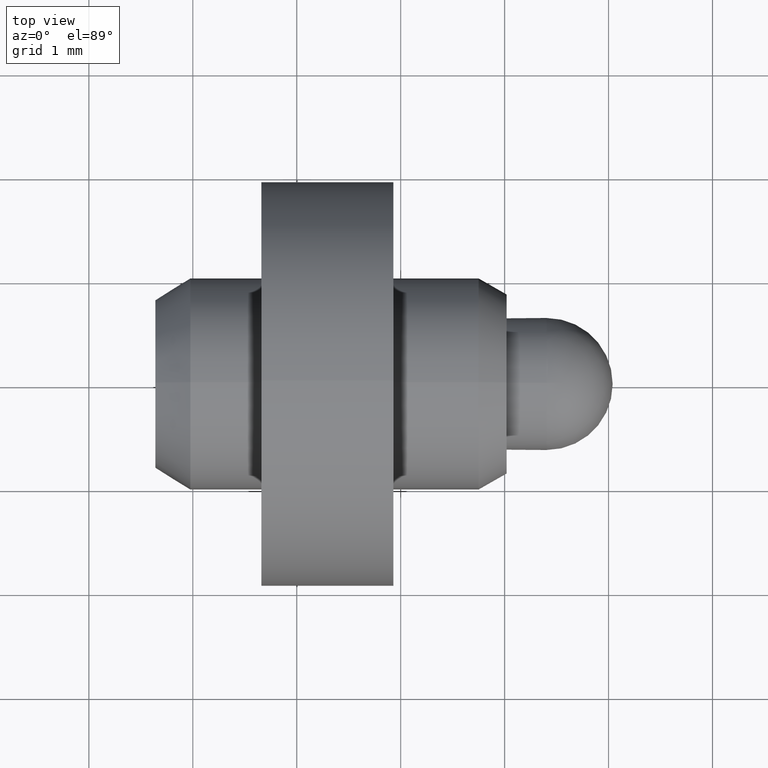
[diagram: clean part render]
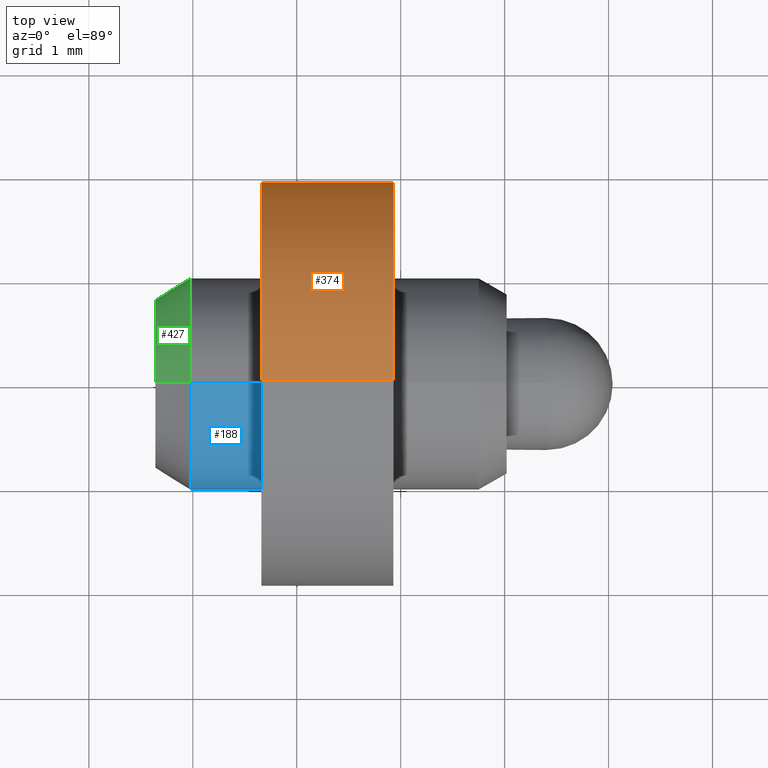
[diagram: same view with three faces highlighted in distinct colors, each labeled with its STEP entity id]
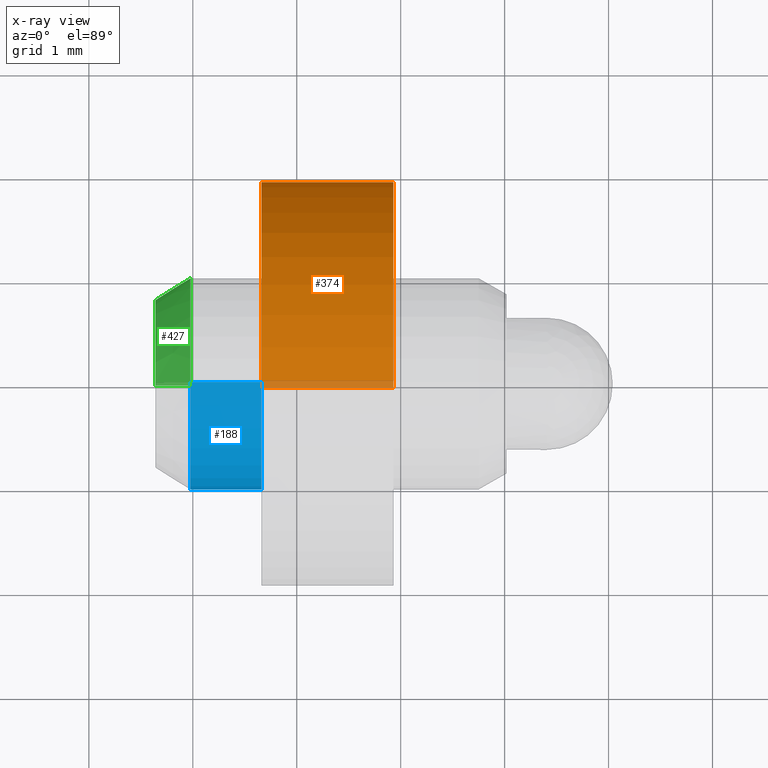
[diagram: x-ray of the same camera — body ghosted, the three highlighted faces saturated]
A machine part, top view with three faces highlighted in distinct colors.
The next image is the same camera in x-ray (body ghosted, the three faces saturated) — at least one of them is partly hidden behind the body in this view.
Their STEP definitions:

[orange] entity #374 — the highlighted cylindrical surface (partial cylindrical patch) has radius 1.945 mm, axis along (-1, -0, -0).
#2 = VECTOR ( 'NONE', #39, 1000.000000000000000 ) ;
#38 = ORIENTED_EDGE ( 'NONE', *, *, #442, .F. ) ;
#39 = DIRECTION ( 'NONE',  ( -1.000000000000000000, -0.0000000000000000000, -0.0000000000000000000 ) ) ;
#72 = CARTESIAN_POINT ( 'NONE',  ( -0.07049936205278306600, 0.0000000000000000000, 0.0000000000000000000 ) ) ;
#73 = AXIS2_PLACEMENT_3D ( 'NONE', #85, #168, #434 ) ;
#76 = CARTESIAN_POINT ( 'NONE',  ( -0.07049936205278306600, 2.381938024341601800E-016, -1.944999999999999800 ) ) ;
#85 = CARTESIAN_POINT ( 'NONE',  ( -2.360499362052783200, 0.0000000000000000000, 0.0000000000000000000 ) ) ;
#111 = ORIENTED_EDGE ( 'NONE', *, *, #212, .T. ) ;
#125 = VERTEX_POINT ( 'NONE', #384 ) ;
#131 = EDGE_CURVE ( 'NONE', #125, #276, #495, .T. ) ;
#140 = ORIENTED_EDGE ( 'NONE', *, *, #131, .T. ) ;
#155 = CARTESIAN_POINT ( 'NONE',  ( -2.360499362052783200, 0.0000000000000000000, 1.944999999999999800 ) ) ;
#162 = EDGE_CURVE ( 'NONE', #125, #332, #288, .T. ) ;
#163 = CARTESIAN_POINT ( 'NONE',  ( -1.340499362052783000, 0.0000000000000000000, 1.944999999999999800 ) ) ;
#168 = DIRECTION ( 'NONE',  ( -1.000000000000000000, -0.0000000000000000000, -0.0000000000000000000 ) ) ;
#176 = ORIENTED_EDGE ( 'NONE', *, *, #162, .F. ) ;
#195 = VERTEX_POINT ( 'NONE', #444 ) ;
#196 = DIRECTION ( 'NONE',  ( 0.0000000000000000000, 0.0000000000000000000, 1.000000000000000000 ) ) ;
#212 = EDGE_CURVE ( 'NONE', #276, #195, #279, .T. ) ;
#227 = DIRECTION ( 'NONE',  ( -1.000000000000000000, -0.0000000000000000000, -0.0000000000000000000 ) ) ;
#237 = DIRECTION ( 'NONE',  ( -1.000000000000000000, -0.0000000000000000000, -0.0000000000000000000 ) ) ;
#270 = FACE_OUTER_BOUND ( 'NONE', #510, .T. ) ;
#276 = VERTEX_POINT ( 'NONE', #76 ) ;
#279 = LINE ( 'NONE', #441, #301 ) ;
#288 = LINE ( 'NONE', #155, #2 ) ;
#301 = VECTOR ( 'NONE', #309, 1000.000000000000000 ) ;
#309 = DIRECTION ( 'NONE',  ( -1.000000000000000000, -0.0000000000000000000, -0.0000000000000000000 ) ) ;
#312 = CYLINDRICAL_SURFACE ( 'NONE', #73, 1.944999999999999800 ) ;
#325 = AXIS2_PLACEMENT_3D ( 'NONE', #387, #227, #383 ) ;
#332 = VERTEX_POINT ( 'NONE', #163 ) ;
#339 = AXIS2_PLACEMENT_3D ( 'NONE', #72, #237, #196 ) ;
#351 = CIRCLE ( 'NONE', #325, 1.944999999999999800 ) ;
#374 = ADVANCED_FACE ( 'NONE', ( #270 ), #312, .T. ) ;
#383 = DIRECTION ( 'NONE',  ( 0.0000000000000000000, 0.0000000000000000000, 1.000000000000000000 ) ) ;
#384 = CARTESIAN_POINT ( 'NONE',  ( -0.07049936205278306600, 0.0000000000000000000, 1.944999999999999800 ) ) ;
#387 = CARTESIAN_POINT ( 'NONE',  ( -1.340499362052783000, 0.0000000000000000000, 0.0000000000000000000 ) ) ;
#434 = DIRECTION ( 'NONE',  ( 0.0000000000000000000, 0.0000000000000000000, 1.000000000000000000 ) ) ;
#441 = CARTESIAN_POINT ( 'NONE',  ( -2.360499362052783200, 2.381938024341601800E-016, -1.944999999999999800 ) ) ;
#442 = EDGE_CURVE ( 'NONE', #332, #195, #351, .T. ) ;
#444 = CARTESIAN_POINT ( 'NONE',  ( -1.340499362052783000, 2.381938024341601800E-016, -1.944999999999999800 ) ) ;
#495 = CIRCLE ( 'NONE', #339, 1.944999999999999800 ) ;
#510 = EDGE_LOOP ( 'NONE', ( #140, #111, #38, #176 ) ) ;

[blue] entity #188 — the highlighted cylindrical surface (partial cylindrical patch) has radius 1.015 mm, axis along (-1, -0, -0).
#3 = DIRECTION ( 'NONE',  ( -1.000000000000000000, -0.0000000000000000000, -0.0000000000000000000 ) ) ;
#23 = DIRECTION ( 'NONE',  ( -1.000000000000000000, -0.0000000000000000000, -0.0000000000000000000 ) ) ;
#62 = CARTESIAN_POINT ( 'NONE',  ( -1.340499362052783000, 0.0000000000000000000, 0.0000000000000000000 ) ) ;
#66 = CYLINDRICAL_SURFACE ( 'NONE', #274, 1.014999999999999900 ) ;
#79 = EDGE_CURVE ( 'NONE', #365, #459, #521, .T. ) ;
#98 = DIRECTION ( 'NONE',  ( 0.0000000000000000000, 0.0000000000000000000, 1.000000000000000000 ) ) ;
#103 = CARTESIAN_POINT ( 'NONE',  ( -2.023764668175233300, 0.0000000000000000000, 1.014999999999999900 ) ) ;
#104 = DIRECTION ( 'NONE',  ( 0.0000000000000000000, 0.0000000000000000000, 1.000000000000000000 ) ) ;
#105 = DIRECTION ( 'NONE',  ( -1.000000000000000000, -0.0000000000000000000, -0.0000000000000000000 ) ) ;
#124 = CARTESIAN_POINT ( 'NONE',  ( -1.340499362052783000, 1.243016501134563300E-016, -1.014999999999999900 ) ) ;
#150 = ORIENTED_EDGE ( 'NONE', *, *, #243, .T. ) ;
#188 = ADVANCED_FACE ( 'NONE', ( #395 ), #66, .T. ) ;
#194 = DIRECTION ( 'NONE',  ( -1.000000000000000000, -0.0000000000000000000, -0.0000000000000000000 ) ) ;
#199 = VECTOR ( 'NONE', #194, 1000.000000000000000 ) ;
#201 = CARTESIAN_POINT ( 'NONE',  ( -1.340499362052783000, 0.0000000000000000000, 1.014999999999999900 ) ) ;
#209 = AXIS2_PLACEMENT_3D ( 'NONE', #62, #23, #98 ) ;
#232 = EDGE_LOOP ( 'NONE', ( #450, #390, #150, #311 ) ) ;
#243 = EDGE_CURVE ( 'NONE', #284, #459, #410, .T. ) ;
#250 = CIRCLE ( 'NONE', #209, 1.014999999999999900 ) ;
#267 = DIRECTION ( 'NONE',  ( -1.000000000000000000, -0.0000000000000000000, -0.0000000000000000000 ) ) ;
#274 = AXIS2_PLACEMENT_3D ( 'NONE', #313, #3, #485 ) ;
#281 = LINE ( 'NONE', #473, #491 ) ;
#284 = VERTEX_POINT ( 'NONE', #201 ) ;
#311 = ORIENTED_EDGE ( 'NONE', *, *, #79, .F. ) ;
#313 = CARTESIAN_POINT ( 'NONE',  ( -2.360499362052783200, 0.0000000000000000000, 0.0000000000000000000 ) ) ;
#318 = AXIS2_PLACEMENT_3D ( 'NONE', #428, #267, #104 ) ;
#340 = VERTEX_POINT ( 'NONE', #124 ) ;
#365 = VERTEX_POINT ( 'NONE', #367 ) ;
#367 = CARTESIAN_POINT ( 'NONE',  ( -2.023764668175233300, 1.243016501134563300E-016, -1.014999999999999900 ) ) ;
#390 = ORIENTED_EDGE ( 'NONE', *, *, #476, .T. ) ;
#393 = CARTESIAN_POINT ( 'NONE',  ( -2.360499362052783200, 0.0000000000000000000, 1.014999999999999900 ) ) ;
#395 = FACE_OUTER_BOUND ( 'NONE', #232, .T. ) ;
#410 = LINE ( 'NONE', #393, #199 ) ;
#428 = CARTESIAN_POINT ( 'NONE',  ( -2.023764668175233300, 0.0000000000000000000, 0.0000000000000000000 ) ) ;
#431 = EDGE_CURVE ( 'NONE', #340, #365, #281, .T. ) ;
#450 = ORIENTED_EDGE ( 'NONE', *, *, #431, .F. ) ;
#459 = VERTEX_POINT ( 'NONE', #103 ) ;
#473 = CARTESIAN_POINT ( 'NONE',  ( -2.360499362052783200, 1.243016501134563300E-016, -1.014999999999999900 ) ) ;
#476 = EDGE_CURVE ( 'NONE', #340, #284, #250, .T. ) ;
#485 = DIRECTION ( 'NONE',  ( 0.0000000000000000000, 0.0000000000000000000, 1.000000000000000000 ) ) ;
#491 = VECTOR ( 'NONE', #105, 1000.000000000000000 ) ;
#521 = CIRCLE ( 'NONE', #318, 1.014999999999999900 ) ;

[green] entity #427 — the highlighted conical surface has half-angle 31.43 deg.
#32 = CARTESIAN_POINT ( 'NONE',  ( -2.023764668175233300, 0.0000000000000000000, 0.0000000000000000000 ) ) ;
#36 = EDGE_CURVE ( 'NONE', #459, #365, #460, .T. ) ;
#74 = CARTESIAN_POINT ( 'NONE',  ( -2.023764668175233300, 0.0000000000000000000, -1.014999999999999900 ) ) ;
#77 = LINE ( 'NONE', #522, #382 ) ;
#100 = VERTEX_POINT ( 'NONE', #228 ) ;
#103 = CARTESIAN_POINT ( 'NONE',  ( -2.023764668175233300, 0.0000000000000000000, 1.014999999999999900 ) ) ;
#106 = DIRECTION ( 'NONE',  ( -1.000000000000000000, -0.0000000000000000000, -0.0000000000000000000 ) ) ;
#122 = VECTOR ( 'NONE', #277, 1000.000000000000000 ) ;
#123 = ORIENTED_EDGE ( 'NONE', *, *, #36, .T. ) ;
#134 = EDGE_CURVE ( 'NONE', #100, #323, #208, .T. ) ;
#149 = DIRECTION ( 'NONE',  ( 0.0000000000000000000, 0.0000000000000000000, -1.000000000000000000 ) ) ;
#171 = FACE_OUTER_BOUND ( 'NONE', #472, .T. ) ;
#183 = AXIS2_PLACEMENT_3D ( 'NONE', #32, #106, #430 ) ;
#192 = ORIENTED_EDGE ( 'NONE', *, *, #210, .T. ) ;
#208 = CIRCLE ( 'NONE', #516, 0.8092176870748299900 ) ;
#210 = EDGE_CURVE ( 'NONE', #100, #459, #77, .T. ) ;
#228 = CARTESIAN_POINT ( 'NONE',  ( -2.360499362052783200, 1.117011175712089100E-016, 0.8092176870748299900 ) ) ;
#229 = LINE ( 'NONE', #74, #122 ) ;
#240 = DIRECTION ( 'NONE',  ( -1.000000000000000000, -0.0000000000000000000, -0.0000000000000000000 ) ) ;
#269 = EDGE_CURVE ( 'NONE', #323, #365, #229, .T. ) ;
#271 = DIRECTION ( 'NONE',  ( 0.8532818336519585300, 6.385920849931684000E-017, 0.5214500094539756800 ) ) ;
#277 = DIRECTION ( 'NONE',  ( 0.8532818336519585300, 0.0000000000000000000, -0.5214500094539756800 ) ) ;
#323 = VERTEX_POINT ( 'NONE', #443 ) ;
#329 = ORIENTED_EDGE ( 'NONE', *, *, #269, .F. ) ;
#365 = VERTEX_POINT ( 'NONE', #367 ) ;
#367 = CARTESIAN_POINT ( 'NONE',  ( -2.023764668175233300, 1.243016501134563300E-016, -1.014999999999999900 ) ) ;
#382 = VECTOR ( 'NONE', #271, 1000.000000000000000 ) ;
#392 = ORIENTED_EDGE ( 'NONE', *, *, #134, .F. ) ;
#427 = ADVANCED_FACE ( 'NONE', ( #171 ), #437, .T. ) ;
#430 = DIRECTION ( 'NONE',  ( 0.0000000000000000000, 0.0000000000000000000, 1.000000000000000000 ) ) ;
#437 = CONICAL_SURFACE ( 'NONE', #439, 1.014999999999999900, 0.5485494024505289700 ) ;
#439 = AXIS2_PLACEMENT_3D ( 'NONE', #505, #489, #149 ) ;
#443 = CARTESIAN_POINT ( 'NONE',  ( -2.360499362052783200, 0.0000000000000000000, -0.8092176870748299900 ) ) ;
#459 = VERTEX_POINT ( 'NONE', #103 ) ;
#460 = CIRCLE ( 'NONE', #183, 1.014999999999999900 ) ;
#472 = EDGE_LOOP ( 'NONE', ( #392, #192, #123, #329 ) ) ;
#483 = CARTESIAN_POINT ( 'NONE',  ( -2.360499362052783200, 0.0000000000000000000, 0.0000000000000000000 ) ) ;
#489 = DIRECTION ( 'NONE',  ( 1.000000000000000000, 0.0000000000000000000, 0.0000000000000000000 ) ) ;
#505 = CARTESIAN_POINT ( 'NONE',  ( -2.023764668175233300, 0.0000000000000000000, 0.0000000000000000000 ) ) ;
#516 = AXIS2_PLACEMENT_3D ( 'NONE', #483, #240, #525 ) ;
#522 = CARTESIAN_POINT ( 'NONE',  ( -2.023764668175233300, 1.243016501134563300E-016, 1.014999999999999900 ) ) ;
#525 = DIRECTION ( 'NONE',  ( 0.0000000000000000000, 0.0000000000000000000, 1.000000000000000000 ) ) ;